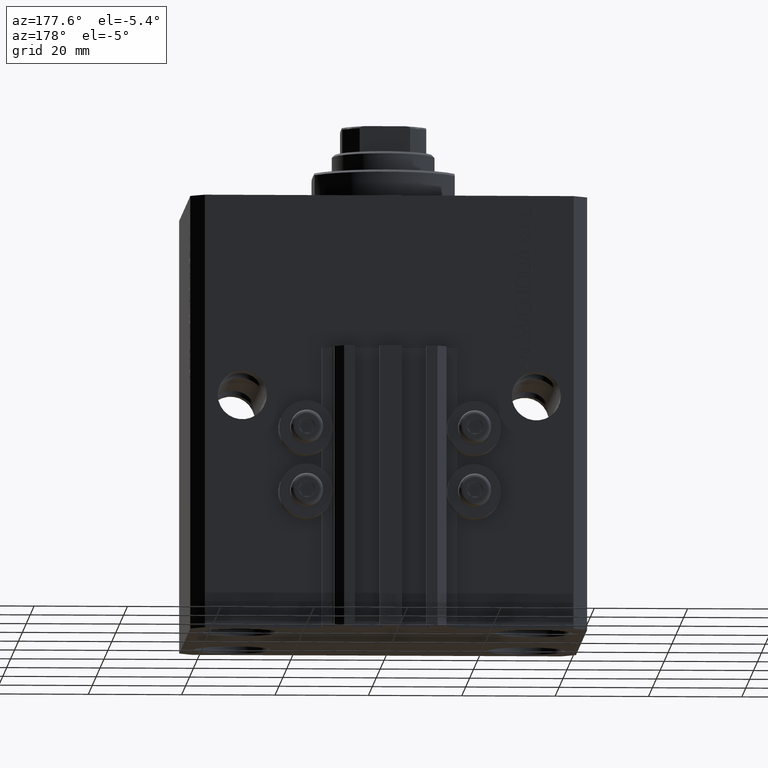
[diagram: clean part render]
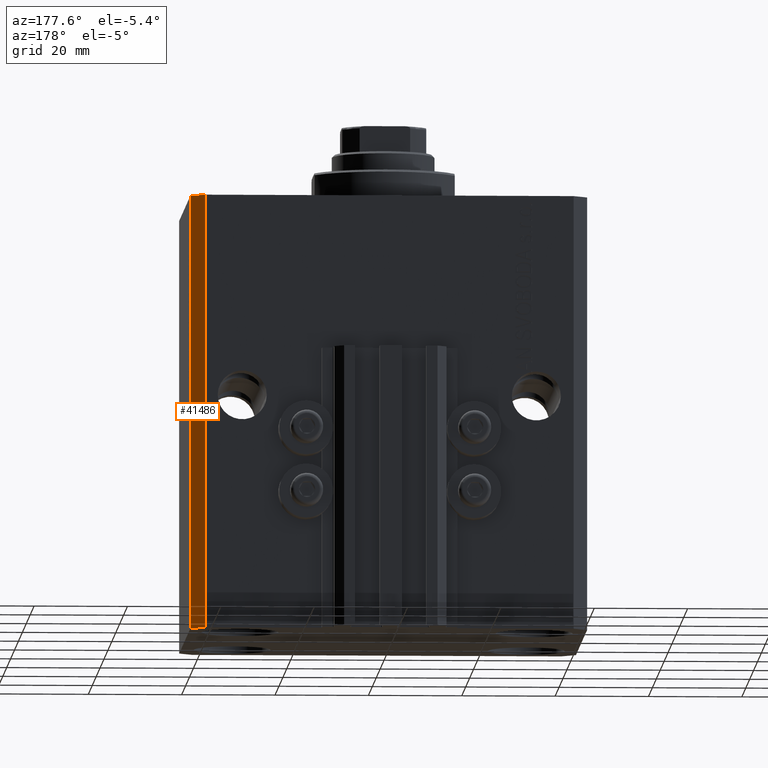
[diagram: same view with one face highlighted and labeled with its STEP entity id]
A machine part, auxiliary view. The second image highlights one B-rep face of the part: STEP entity #41486.
In plain terms, the highlighted planar face has unit normal (0.7071, 0.7071, 0).
Its self-contained STEP definition (entity closure, byte-faithful):
#2624 = VERTEX_POINT ( 'NONE', #30745 ) ;
#3890 = CARTESIAN_POINT ( 'NONE',  ( 39.50000000000056843, 31.50000000000000000, -93.00000000000000000 ) ) ;
#4595 = ORIENTED_EDGE ( 'NONE', *, *, #28817, .F. ) ;
#5954 = DIRECTION ( 'NONE',  ( 0.000000000000000000, 0.000000000000000000, 1.000000000000000000 ) ) ;
#6893 = CARTESIAN_POINT ( 'NONE',  ( 42.50000000000051870, 28.49999999999995381, 0.000000000000000000 ) ) ;
#9506 = FACE_OUTER_BOUND ( 'NONE', #33156, .T. ) ;
#13029 = VECTOR ( 'NONE', #40306, 1000.000000000000114 ) ;
#14066 = VECTOR ( 'NONE', #44382, 1000.000000000000000 ) ;
#14130 = ORIENTED_EDGE ( 'NONE', *, *, #42728, .T. ) ;
#15030 = CARTESIAN_POINT ( 'NONE',  ( 42.50000000000051870, 28.49999999999995381, -93.00000000000000000 ) ) ;
#16194 = LINE ( 'NONE', #26533, #45599 ) ;
#17581 = ORIENTED_EDGE ( 'NONE', *, *, #44098, .F. ) ;
#18195 = LINE ( 'NONE', #6893, #13029 ) ;
#21255 = DIRECTION ( 'NONE',  ( -0.7071067811865355823, 0.7071067811865594521, 0.000000000000000000 ) ) ;
#24160 = PLANE ( 'NONE',  #30190 ) ;
#24221 = CARTESIAN_POINT ( 'NONE',  ( 39.50000000000056843, 31.50000000000000000, -93.00000000000000000 ) ) ;
#24929 = LINE ( 'NONE', #24221, #45178 ) ;
#26533 = CARTESIAN_POINT ( 'NONE',  ( 42.50000000000051870, 28.49999999999995381, -93.00000000000000000 ) ) ;
#27350 = CARTESIAN_POINT ( 'NONE',  ( 42.50000000000051870, 28.49999999999995381, 0.000000000000000000 ) ) ;
#28817 = EDGE_CURVE ( 'NONE', #29382, #2624, #18195, .T. ) ;
#29382 = VERTEX_POINT ( 'NONE', #27350 ) ;
#29438 = EDGE_CURVE ( 'NONE', #40731, #2624, #24929, .T. ) ;
#30190 = AXIS2_PLACEMENT_3D ( 'NONE', #36639, #47250, #21255 ) ;
#30745 = CARTESIAN_POINT ( 'NONE',  ( 39.50000000000056843, 31.50000000000000000, 0.000000000000000000 ) ) ;
#31745 = ORIENTED_EDGE ( 'NONE', *, *, #29438, .T. ) ;
#33156 = EDGE_LOOP ( 'NONE', ( #4595, #17581, #14130, #31745 ) ) ;
#33291 = LINE ( 'NONE', #15030, #14066 ) ;
#34212 = DIRECTION ( 'NONE',  ( -0.7071067811865356934, 0.7071067811865594521, 0.000000000000000000 ) ) ;
#35605 = CARTESIAN_POINT ( 'NONE',  ( 42.50000000000051870, 28.49999999999995381, -93.00000000000000000 ) ) ;
#36639 = CARTESIAN_POINT ( 'NONE',  ( 42.50000000000051870, 28.49999999999995381, -93.00000000000000000 ) ) ;
#39868 = VERTEX_POINT ( 'NONE', #35605 ) ;
#40306 = DIRECTION ( 'NONE',  ( -0.7071067811865356934, 0.7071067811865594521, 0.000000000000000000 ) ) ;
#40731 = VERTEX_POINT ( 'NONE', #3890 ) ;
#41486 = ADVANCED_FACE ( 'NONE', ( #9506 ), #24160, .T. ) ;
#42728 = EDGE_CURVE ( 'NONE', #39868, #40731, #16194, .T. ) ;
#44098 = EDGE_CURVE ( 'NONE', #39868, #29382, #33291, .T. ) ;
#44382 = DIRECTION ( 'NONE',  ( 0.000000000000000000, 0.000000000000000000, 1.000000000000000000 ) ) ;
#45178 = VECTOR ( 'NONE', #5954, 1000.000000000000000 ) ;
#45599 = VECTOR ( 'NONE', #34212, 1000.000000000000114 ) ;
#47250 = DIRECTION ( 'NONE',  ( 0.7071067811865594521, 0.7071067811865355823, -0.000000000000000000 ) ) ;